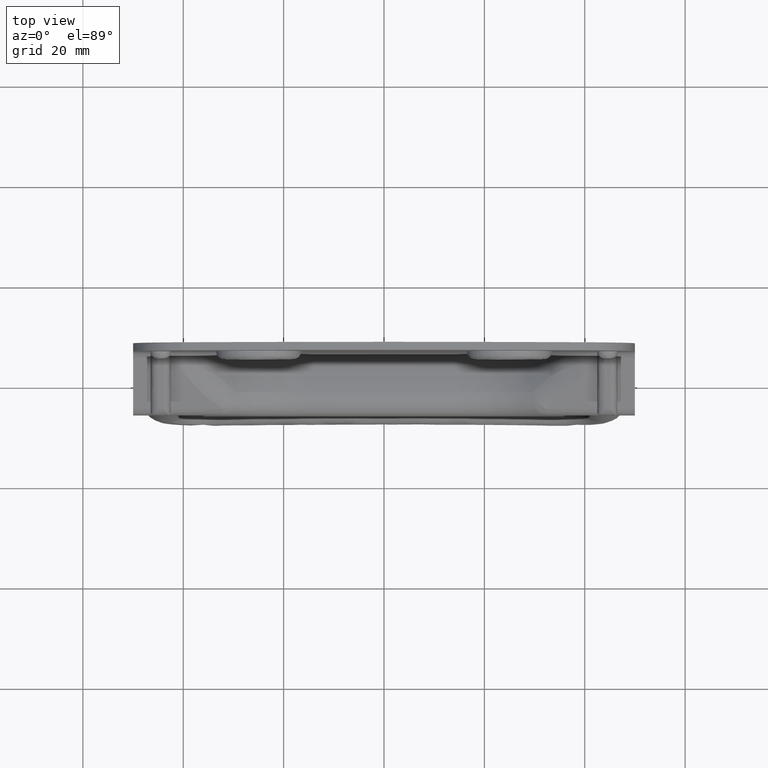
[diagram: clean part render]
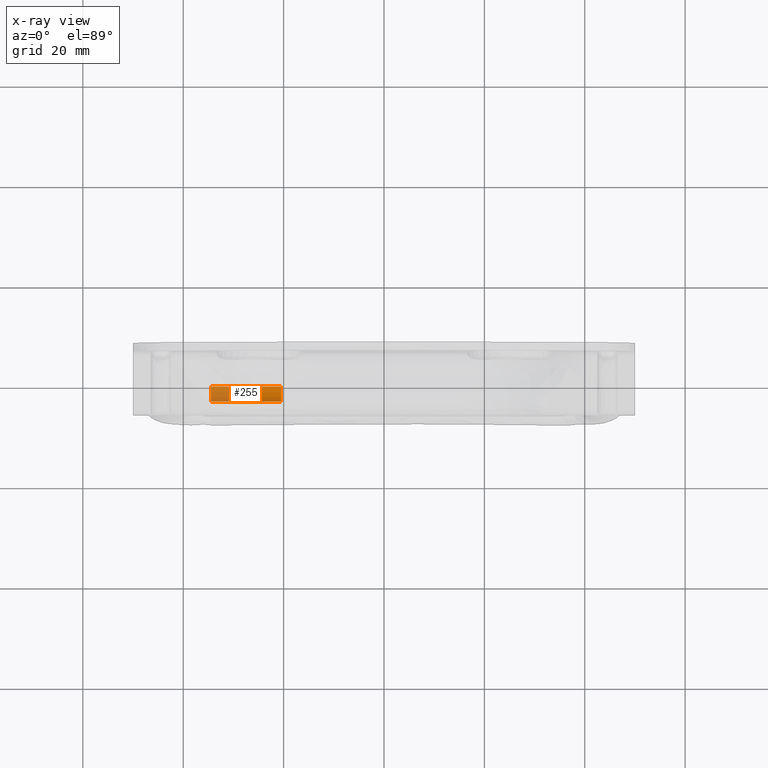
[diagram: x-ray — body ghosted, one internal face saturated and labeled with its STEP entity id]
A machine part, top view, then the same camera in x-ray: the body is ghosted and one INTERNAL B-rep face — a face not visible from any outside direction — is saturated and labeled: STEP entity #255.
In plain terms, the highlighted face is a freeform B-spline surface patch.
Its self-contained STEP definition (entity closure, byte-faithful):
#70=CARTESIAN_POINT('',(-20.500000000001599,-0.625900850765985,-4.960670165152557));
#71=VERTEX_POINT('',#70);
#81=CARTESIAN_POINT('',(-34.499999999996298,-0.625900847093418,-4.960670129086184));
#82=VERTEX_POINT('',#81);
#83=CARTESIAN_POINT('',(-34.499999999996298,-0.625900847093418,-4.960670129086184));
#84=CARTESIAN_POINT('',(-20.500000000001599,-0.625900850765985,-4.960670165152557));
#85=QUASI_UNIFORM_CURVE('',1,(#83,#84),.UNSPECIFIED.,.F.,.U.);
#86=EDGE_CURVE('',#82,#71,#85,.T.);
#143=CARTESIAN_POINT('',(-34.500000000002700,-3.626871786319473,-3.441772950906809));
#144=VERTEX_POINT('',#143);
#154=CARTESIAN_POINT('',(-20.500000000001599,-3.626872194189185,-3.441773202011731));
#155=VERTEX_POINT('',#154);
#156=CARTESIAN_POINT('',(-34.500000000002700,-3.626871786319473,-3.441772950906809));
#157=CARTESIAN_POINT('',(-20.500000000001599,-3.626872194189185,-3.441773202011731));
#158=QUASI_UNIFORM_CURVE('',1,(#156,#157),.UNSPECIFIED.,.F.,.U.);
#159=EDGE_CURVE('',#144,#155,#158,.T.);
#219=CARTESIAN_POINT('',(-34.850000000696923,-3.626871855060496,-3.441772878468892));
#220=CARTESIAN_POINT('',(-34.850000000696923,-2.397626940892986,-4.737126738121317));
#221=CARTESIAN_POINT('',(-34.850000000696916,-0.625900935533250,-4.960670117927481));
#222=CARTESIAN_POINT('',(-20.141249999984211,-3.626871855060496,-3.441772878468892));
#223=CARTESIAN_POINT('',(-20.141249999984211,-2.397626940892986,-4.737126738121317));
#224=CARTESIAN_POINT('',(-20.141249999984211,-0.625900935533250,-4.960670117927481));
#232=(BOUNDED_SURFACE()B_SPLINE_SURFACE(2,1,((#219,#222),(#220,#223),(#221,#224)),.UNSPECIFIED.,.F.,.F.,.U.)B_SPLINE_SURFACE_WITH_KNOTS((3,3),(2,2),(0.0,3.636095830887022),(0.0,14.708750000712710),.UNSPECIFIED.)GEOMETRIC_REPRESENTATION_ITEM()RATIONAL_B_SPLINE_SURFACE(((1.0,1.0),(0.871126983722081,0.871126983722081),(0.855662221768731,0.855662221768731)))REPRESENTATION_ITEM('')SURFACE());
#233=CARTESIAN_POINT('',(-20.500000000001599,-3.626872194189185,-3.441773202011731));
#234=CARTESIAN_POINT('',(-20.500000000001609,-3.319507367655991,-3.765882106454932));
#235=CARTESIAN_POINT('',(-20.500000000001531,-2.673304327348062,-4.285551680785929));
#236=CARTESIAN_POINT('',(-20.500000000001709,-1.627832908961670,-4.766308874501481));
#237=CARTESIAN_POINT('',(-20.500000000001460,-0.944970470384298,-4.920441328758568));
#238=CARTESIAN_POINT('',(-20.500000000001599,-0.625900850765985,-4.960670165152557));
#239=B_SPLINE_CURVE_WITH_KNOTS('',3,(#233,#234,#235,#236,#237,#238),.UNSPECIFIED.,.F.,.U.,(4,1,1,4),(0.000000022889439,1.339986774167639,2.465569944258120,3.430359973110584),.UNSPECIFIED.);
#240=EDGE_CURVE('',#155,#71,#239,.T.);
#241=ORIENTED_EDGE('',*,*,#240,.F.);
#242=ORIENTED_EDGE('',*,*,#159,.F.);
#243=CARTESIAN_POINT('',(-34.500000000002700,-3.626871786319473,-3.441772950906809));
#244=CARTESIAN_POINT('',(-34.499999999998010,-3.319515142042032,-3.765895222682742));
#245=CARTESIAN_POINT('',(-34.499999999992831,-2.743516501511849,-4.229010512959103));
#246=CARTESIAN_POINT('',(-34.499999999990898,-1.714044575236306,-4.736293683991094));
#247=CARTESIAN_POINT('',(-34.499999999993442,-1.033616727858096,-4.909327219985806));
#248=CARTESIAN_POINT('',(-34.499999999996298,-0.625900847093418,-4.960670129086184));
#249=B_SPLINE_CURVE_WITH_KNOTS('',3,(#243,#244,#245,#246,#247,#248),.UNSPECIFIED.,.F.,.U.,(4,1,1,4),(0.000000022892833,1.339986667651240,2.197572098813223,3.430359700408145),.UNSPECIFIED.);
#250=EDGE_CURVE('',#144,#82,#249,.T.);
#251=ORIENTED_EDGE('',*,*,#250,.T.);
#252=ORIENTED_EDGE('',*,*,#86,.T.);
#253=EDGE_LOOP('',(#241,#242,#251,#252));
#254=FACE_OUTER_BOUND('',#253,.T.);
#255=ADVANCED_FACE('',(#254),#232,.T.);